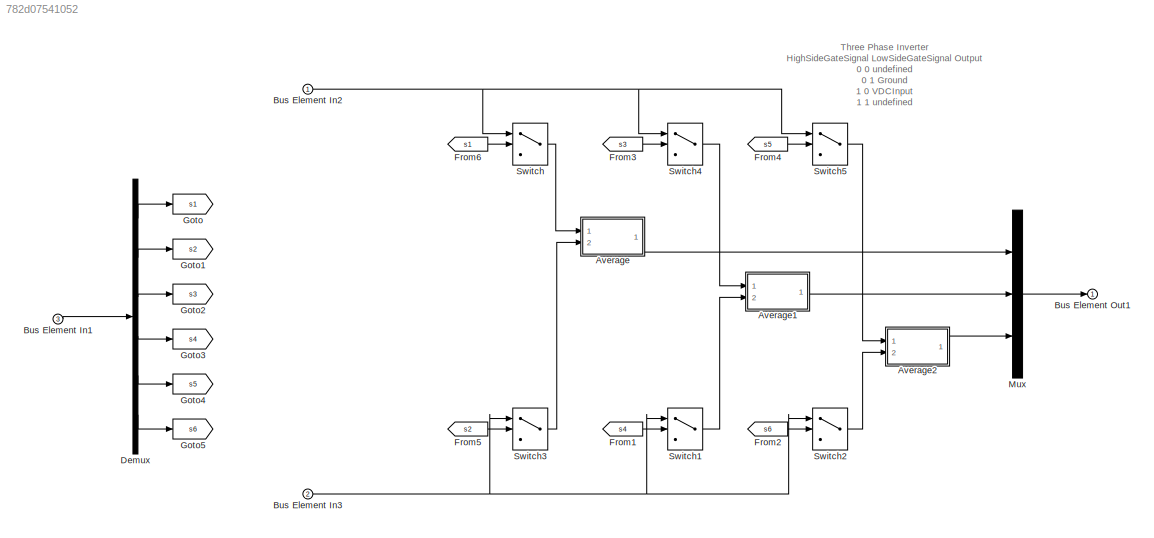
MODEL slx_782d07541052
KIND model
CONFIG AbsTol = auto
CONFIG EnableMultiTasking = off
CONFIG FixedStep = auto
CONFIG MaxStep = auto
CONFIG MinStep = auto
CONFIG RelTol = 1e-3
CONFIG SampleTimeConstraint = Unconstrained
CONFIG Solver = VariableStepAuto
CONFIG SolverName = VariableStepAuto
CONFIG StartTime = 0.0
CONFIG StopTime = 10.0
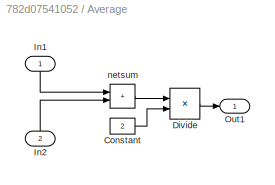
BLOCK [SubSystem] Average
  NameLocation = top
  Ports = [2, 1]
  RequestExecContextInheritance = off
BLOCK [Constant] Average/Constant
  Value = 2
BLOCK [Product] Average/Divide
  Inputs = */
  Ports = [2, 1]
BLOCK [Inport] Average/In1
  NameLocation = right
BLOCK [Inport] Average/In2
  NameLocation = right
  Port = 2
BLOCK [Outport] Average/Out1
BLOCK [Sum] Average/netsum
  IconShape = rectangular
  InputSameDT = on
  Inputs = 2
  OutDataTypeStr = Inherit: Same as first input
  Ports = [2, 1]
  SaturateOnIntegerOverflow = on
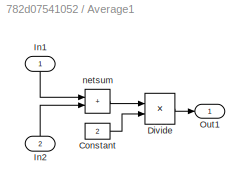
BLOCK [SubSystem] Average1
  NameLocation = top
  Ports = [2, 1]
  RequestExecContextInheritance = off
BLOCK [Constant] Average1/Constant
  Value = 2
BLOCK [Product] Average1/Divide
  Inputs = */
  Ports = [2, 1]
BLOCK [Inport] Average1/In1
  NameLocation = right
BLOCK [Inport] Average1/In2
  NameLocation = right
  Port = 2
BLOCK [Outport] Average1/Out1
BLOCK [Sum] Average1/netsum
  IconShape = rectangular
  InputSameDT = on
  Inputs = 2
  OutDataTypeStr = Inherit: Same as first input
  Ports = [2, 1]
  SaturateOnIntegerOverflow = on
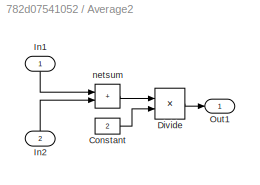
BLOCK [SubSystem] Average2
  NameLocation = top
  Ports = [2, 1]
  RequestExecContextInheritance = off
BLOCK [Constant] Average2/Constant
  Value = 2
BLOCK [Product] Average2/Divide
  Inputs = */
  Ports = [2, 1]
BLOCK [Inport] Average2/In1
  NameLocation = right
BLOCK [Inport] Average2/In2
  NameLocation = right
  Port = 2
BLOCK [Outport] Average2/Out1
BLOCK [Sum] Average2/netsum
  IconShape = rectangular
  InputSameDT = on
  Inputs = 2
  OutDataTypeStr = Inherit: Same as first input
  Ports = [2, 1]
  SaturateOnIntegerOverflow = on
BLOCK [Inport] Bus Element In1
  Port = 3
BLOCK [Inport] Bus Element In2
BLOCK [Inport] Bus Element In3
  Port = 2
BLOCK [Outport] Bus Element Out1
BLOCK [Demux] Demux
  Outputs = 6
  Ports = [1, 6]
BLOCK [From] From1
  CloseFcn = tagdialog Close
  GotoTag = s4
BLOCK [From] From2
  CloseFcn = tagdialog Close
  GotoTag = s6
BLOCK [From] From3
  CloseFcn = tagdialog Close
  GotoTag = s3
BLOCK [From] From4
  CloseFcn = tagdialog Close
  GotoTag = s5
BLOCK [From] From5
  CloseFcn = tagdialog Close
  GotoTag = s2
BLOCK [From] From6
  CloseFcn = tagdialog Close
  GotoTag = s1
BLOCK [Goto] Goto
  GotoTag = s1
BLOCK [Goto] Goto1
  GotoTag = s2
BLOCK [Goto] Goto2
  GotoTag = s3
BLOCK [Goto] Goto3
  GotoTag = s4
BLOCK [Goto] Goto4
  GotoTag = s5
BLOCK [Goto] Goto5
  GotoTag = s6
BLOCK [Mux] Mux
  DisplayOption = bar
  Inputs = 3
  Ports = [3, 1]
BLOCK [Switch] Switch
  InputSameDT = off
  SaturateOnIntegerOverflow = off
BLOCK [Switch] Switch1
  InputSameDT = off
  SaturateOnIntegerOverflow = off
BLOCK [Switch] Switch2
  InputSameDT = off
  SaturateOnIntegerOverflow = off
BLOCK [Switch] Switch3
  InputSameDT = off
  SaturateOnIntegerOverflow = off
BLOCK [Switch] Switch4
  InputSameDT = off
  SaturateOnIntegerOverflow = off
BLOCK [Switch] Switch5
  InputSameDT = off
  SaturateOnIntegerOverflow = off
ANNOTATION (root): Three Phase Inverter HighSideGateSignal LowSideGateSignal Output 0 0 undefined 0 1 Ground 1 0 VDCInput 1 1 undefined
LINE Average/Constant:1 -> Average/Divide:2
LINE Average/Divide:1 -> Average/Out1:1
LINE Average/In1:1 -> Average/netsum:1
LINE Average/In2:1 -> Average/netsum:2
LINE Average/netsum:1 -> Average/Divide:1
LINE Average1/Constant:1 -> Average1/Divide:2
LINE Average1/Divide:1 -> Average1/Out1:1
LINE Average1/In1:1 -> Average1/netsum:1
LINE Average1/In2:1 -> Average1/netsum:2
LINE Average1/netsum:1 -> Average1/Divide:1
LINE Average1:1 -> Mux:2
LINE Average2/Constant:1 -> Average2/Divide:2
LINE Average2/Divide:1 -> Average2/Out1:1
LINE Average2/In1:1 -> Average2/netsum:1
LINE Average2/In2:1 -> Average2/netsum:2
LINE Average2/netsum:1 -> Average2/Divide:1
LINE Average2:1 -> Mux:3
LINE Average:1 -> Mux:1
LINE Bus Element In1:1 -> Demux:1
NET Bus Element In2:1 -> Switch4:1, Switch5:1, Switch:1
NET Bus Element In3:1 -> Switch1:1, Switch2:1, Switch3:1
LINE Demux:1 -> Goto:1
LINE Demux:2 -> Goto1:1
LINE Demux:3 -> Goto2:1
LINE Demux:4 -> Goto3:1
LINE Demux:5 -> Goto4:1
LINE Demux:6 -> Goto5:1
LINE From1:1 -> Switch1:2
LINE From2:1 -> Switch2:2
LINE From3:1 -> Switch4:2
LINE From4:1 -> Switch5:2
LINE From5:1 -> Switch3:2
LINE From6:1 -> Switch:2
LINE Mux:1 -> Bus Element Out1:1
LINE Switch1:1 -> Average1:2
LINE Switch2:1 -> Average2:2
LINE Switch3:1 -> Average:2
LINE Switch4:1 -> Average1:1
LINE Switch5:1 -> Average2:1
LINE Switch:1 -> Average:1
note: NET lines group one-source signal fan-out (src -> all destinations, sorted); 1:1 wires keep LINE
